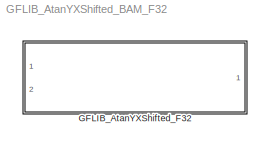
MODEL GFLIB_AtanYXShifted_BAM_F32
KIND model
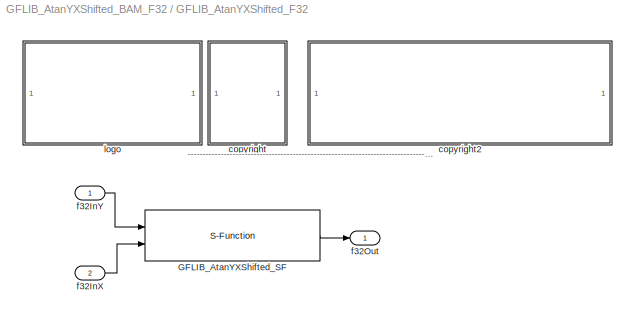
BLOCK [SubSystem] GFLIB_AtanYXShifted_F32
  Ports = [2, 1]
  RequestExecContextInheritance = off
  SID = 1
BLOCK [S-Function] GFLIB_AtanYXShifted_F32/GFLIB_AtanYXShifted_SF
  EnableBusSupport = off
  FunctionName = GFLIB_AtanYXShifted_SF_F32
  Parameters = Ky,Kx,Ny,Nx,ThetaAdj
  Ports = [2, 1]
  SID = 4
BLOCK [SubSystem] GFLIB_AtanYXShifted_F32/<copyright redacted>
  Ports = []
  RequestExecContextInheritance = off
  SID = 5
BLOCK [SubSystem] GFLIB_AtanYXShifted_F32/copyright2
  Ports = []
  RequestExecContextInheritance = off
  SID = 6
BLOCK [Inport] GFLIB_AtanYXShifted_F32/f32InX
  IconDisplay = Port number
  Port = 2
  SID = 3
BLOCK [Inport] GFLIB_AtanYXShifted_F32/f32InY
  IconDisplay = Port number
  SID = 2
BLOCK [Outport] GFLIB_AtanYXShifted_F32/f32Out
  IconDisplay = Port number
  SID = 8
BLOCK [SubSystem] GFLIB_AtanYXShifted_F32/logo
  Ports = []
  RequestExecContextInheritance = off
  SID = 7
ANNOTATION GFLIB_AtanYXShifted_F32: ---------------------------------------------------------------------------------------------------------------------------------------------------------------------------------------------------
LINE GFLIB_AtanYXShifted_F32/GFLIB_AtanYXShifted_SF:1 -> GFLIB_AtanYXShifted_F32/f32Out:1
LINE GFLIB_AtanYXShifted_F32/f32InX:1 -> GFLIB_AtanYXShifted_F32/GFLIB_AtanYXShifted_SF:2
LINE GFLIB_AtanYXShifted_F32/f32InY:1 -> GFLIB_AtanYXShifted_F32/GFLIB_AtanYXShifted_SF:1
